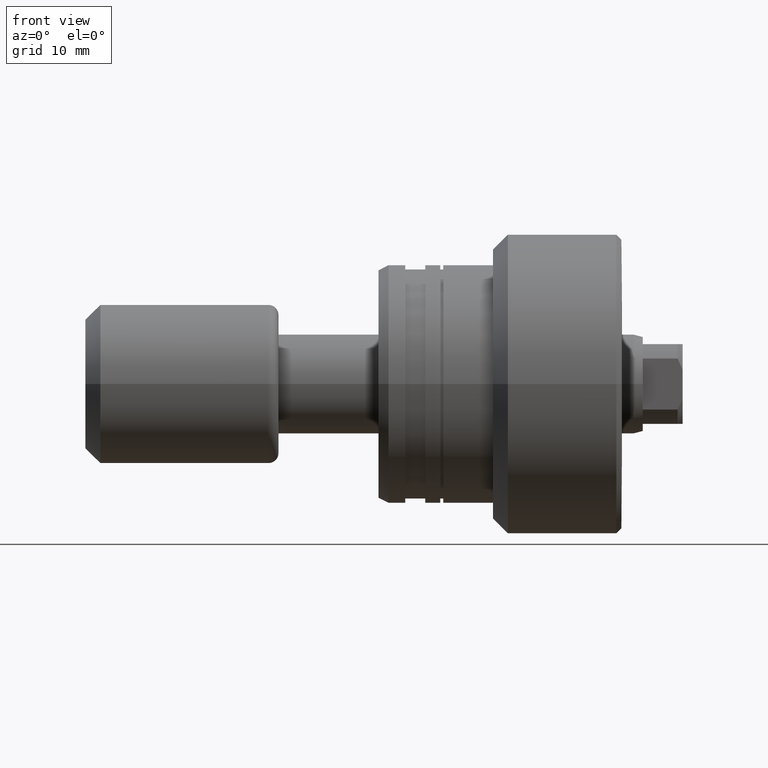
[diagram: clean part render]
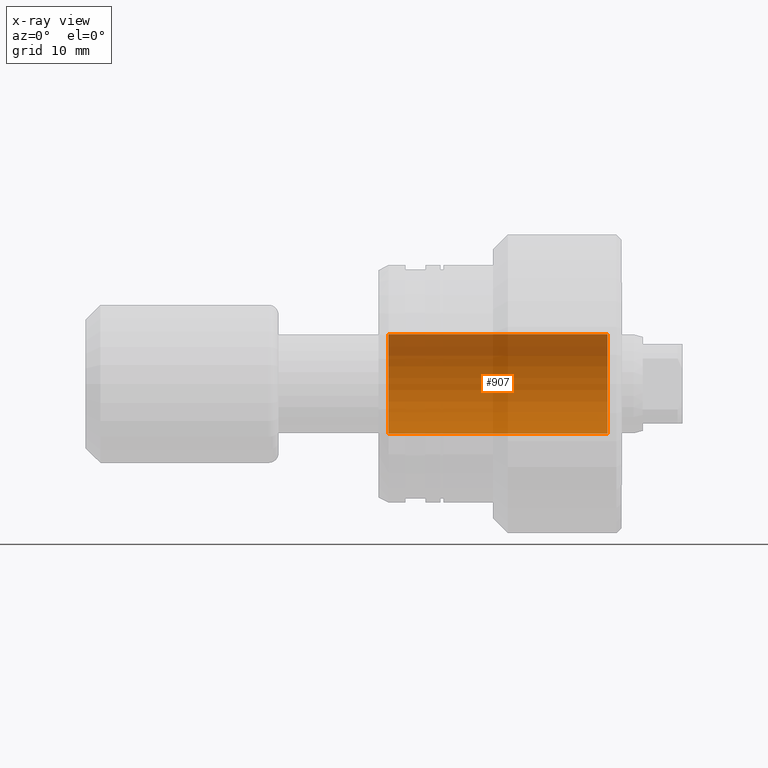
[diagram: x-ray — body ghosted, one internal face saturated and labeled with its STEP entity id]
A machine part, front view, then the same camera in x-ray: the body is ghosted and one INTERNAL B-rep face — a face not visible from any outside direction — is saturated and labeled: STEP entity #907.
In plain terms, the highlighted cylindrical surface (partial cylindrical patch) has radius 5 mm, axis along (1, 0, 0).
Its self-contained STEP definition (entity closure, byte-faithful):
#3 = CYLINDRICAL_SURFACE ( 'NONE', #2401, 5.000000000000000000 ) ;
#134 = DIRECTION ( 'NONE',  ( 1.000000000000000000, 0.000000000000000000, 0.000000000000000000 ) ) ;
#136 = DIRECTION ( 'NONE',  ( 1.000000000000000000, -0.000000000000000000, -0.000000000000000000 ) ) ;
#164 = EDGE_CURVE ( 'NONE', #1181, #1741, #217, .T. ) ;
#176 = DIRECTION ( 'NONE',  ( 1.000000000000000000, -0.000000000000000000, -0.000000000000000000 ) ) ;
#206 = LINE ( 'NONE', #978, #1679 ) ;
#210 = DIRECTION ( 'NONE',  ( -1.000000000000000000, -0.000000000000000000, -0.000000000000000000 ) ) ;
#217 = LINE ( 'NONE', #358, #1917 ) ;
#358 = CARTESIAN_POINT ( 'NONE',  ( -38.64213562373095101, 6.123233995736766282E-16, 5.000000000000000000 ) ) ;
#372 = CARTESIAN_POINT ( 'NONE',  ( -1.500000000000000000, 0.000000000000000000, -5.000000000000000000 ) ) ;
#445 = ORIENTED_EDGE ( 'NONE', *, *, #970, .T. ) ;
#536 = DIRECTION ( 'NONE',  ( 0.000000000000000000, 0.000000000000000000, -1.000000000000000000 ) ) ;
#588 = DIRECTION ( 'NONE',  ( 0.000000000000000000, 0.000000000000000000, 1.000000000000000000 ) ) ;
#665 = ORIENTED_EDGE ( 'NONE', *, *, #1253, .T. ) ;
#753 = CARTESIAN_POINT ( 'NONE',  ( -1.500000000000000000, 6.123233995736766282E-16, 5.000000000000000000 ) ) ;
#788 = CIRCLE ( 'NONE', #1488, 5.000000000000000000 ) ;
#858 = CARTESIAN_POINT ( 'NONE',  ( -1.500000000000000000, 0.000000000000000000, 0.000000000000000000 ) ) ;
#904 = CARTESIAN_POINT ( 'NONE',  ( -23.49999999999997868, 0.000000000000000000, -5.000000000000000000 ) ) ;
#905 = CARTESIAN_POINT ( 'NONE',  ( -38.64213562373095101, 0.000000000000000000, 0.000000000000000000 ) ) ;
#907 = ADVANCED_FACE ( 'NONE', ( #2420 ), #3, .F. ) ;
#963 = VERTEX_POINT ( 'NONE', #372 ) ;
#970 = EDGE_CURVE ( 'NONE', #1134, #963, #206, .T. ) ;
#978 = CARTESIAN_POINT ( 'NONE',  ( -38.64213562373095101, 0.000000000000000000, -5.000000000000000000 ) ) ;
#1057 = CARTESIAN_POINT ( 'NONE',  ( -23.49999999999997868, 6.123233995736766282E-16, 5.000000000000000000 ) ) ;
#1134 = VERTEX_POINT ( 'NONE', #904 ) ;
#1181 = VERTEX_POINT ( 'NONE', #1057 ) ;
#1253 = EDGE_CURVE ( 'NONE', #963, #1741, #1610, .T. ) ;
#1488 = AXIS2_PLACEMENT_3D ( 'NONE', #2310, #210, #588 ) ;
#1610 = CIRCLE ( 'NONE', #2272, 5.000000000000000000 ) ;
#1643 = DIRECTION ( 'NONE',  ( 0.000000000000000000, 0.000000000000000000, -1.000000000000000000 ) ) ;
#1679 = VECTOR ( 'NONE', #136, 1000.000000000000000 ) ;
#1731 = DIRECTION ( 'NONE',  ( 1.000000000000000000, -0.000000000000000000, -0.000000000000000000 ) ) ;
#1741 = VERTEX_POINT ( 'NONE', #753 ) ;
#1816 = ORIENTED_EDGE ( 'NONE', *, *, #2221, .T. ) ;
#1862 = EDGE_LOOP ( 'NONE', ( #1921, #1816, #445, #665 ) ) ;
#1917 = VECTOR ( 'NONE', #1731, 1000.000000000000000 ) ;
#1921 = ORIENTED_EDGE ( 'NONE', *, *, #164, .F. ) ;
#2221 = EDGE_CURVE ( 'NONE', #1181, #1134, #788, .T. ) ;
#2272 = AXIS2_PLACEMENT_3D ( 'NONE', #858, #134, #1643 ) ;
#2310 = CARTESIAN_POINT ( 'NONE',  ( -23.49999999999997868, 0.000000000000000000, 0.000000000000000000 ) ) ;
#2401 = AXIS2_PLACEMENT_3D ( 'NONE', #905, #176, #536 ) ;
#2420 = FACE_OUTER_BOUND ( 'NONE', #1862, .T. ) ;